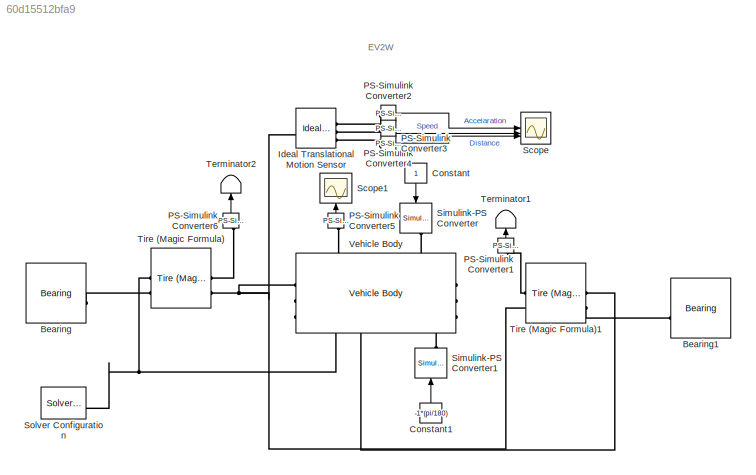
MODEL slx_60d15512bfa9
KIND model
CONFIG AbsTol = auto
CONFIG EnableMultiTasking = off
CONFIG FixedStep = auto
CONFIG MaxStep = auto
CONFIG MinStep = auto
CONFIG RelTol = 1e-3
CONFIG SampleTimeConstraint = Unconstrained
CONFIG SolverName = VariableStepAuto
CONFIG StartTime = 0.0
CONFIG StopTime = 200
BLOCK [Reference] Bearing  REF=sdl_lib/Couplings & Drives/Bearing
  SourceBlock = sdl_lib/Couplings & Drives/Bearing
  SourceType = Bearing
BLOCK [Reference] Bearing1  REF=sdl_lib/Couplings & Drives/Bearing
  SourceBlock = sdl_lib/Couplings & Drives/Bearing
  SourceType = Bearing
BLOCK [Constant] Constant
  NameLocation = left
BLOCK [Constant] Constant1
  NameLocation = right
  Value = -1*(pi/180)
BLOCK [Reference] Ideal Translational Motion Sensor  REF=fl_lib/Mechanical/Mechanical Sensors/Ideal Translational
Motion Sensor
  SourceBlock = fl_lib/Mechanical/Mechanical Sensors/Ideal Translational\nMotion Sensor
  SourceType = Ideal Translational\nMotion Sensor
BLOCK [Reference] PS-Simulink Converter1  REF=nesl_utility/PS-Simulink
Converter
  NameLocation = right
  SourceBlock = nesl_utility/PS-Simulink\nConverter
  SourceType = PS-Simulink\nConverter
BLOCK [Reference] PS-Simulink Converter2  REF=nesl_utility/PS-Simulink
Converter
  SourceBlock = nesl_utility/PS-Simulink\nConverter
  SourceType = PS-Simulink\nConverter
BLOCK [Reference] PS-Simulink Converter3  REF=nesl_utility/PS-Simulink
Converter
  SourceBlock = nesl_utility/PS-Simulink\nConverter
  SourceType = PS-Simulink\nConverter
BLOCK [Reference] PS-Simulink Converter4  REF=nesl_utility/PS-Simulink
Converter
  SourceBlock = nesl_utility/PS-Simulink\nConverter
  SourceType = PS-Simulink\nConverter
BLOCK [Reference] PS-Simulink Converter5  REF=nesl_utility/PS-Simulink
Converter
  NameLocation = right
  SourceBlock = nesl_utility/PS-Simulink\nConverter
  SourceType = PS-Simulink\nConverter
BLOCK [Reference] PS-Simulink Converter6  REF=nesl_utility/PS-Simulink
Converter
  NameLocation = right
  SourceBlock = nesl_utility/PS-Simulink\nConverter
  SourceType = PS-Simulink\nConverter
BLOCK [Scope] Scope
  Floating = off
  NumInputPorts = 3
  ScopeSpecificationString = Simulink.scopes.TimeScopeBlockCfg('CurrentConfiguration', extmgr.ConfigurationSet(extmgr.Configuration('Core','General UI',true),extmgr.Configuration('Core','Source UI',true),extmgr.Configuration('Sources','WiredSimulink',true),extmgr.Configuration('Visuals','Time Domain',true,'SerializedDisplays',{struct('MinYLimReal','-10','MaxYLimReal','10','YLabelReal','','MinYLimMag','0','MaxYLimMag','10','Le...<+1367ch>
BLOCK [Scope] Scope1
  Floating = off
  NameLocation = right
  NumInputPorts = 1
  ScopeSpecificationString = Simulink.scopes.TimeScopeBlockCfg('CurrentConfiguration', extmgr.ConfigurationSet(extmgr.Configuration('Core','General UI',true),extmgr.Configuration('Core','Source UI',true),extmgr.Configuration('Sources','WiredSimulink',true,'DataLoggingVariableName','ScopeData1'),extmgr.Configuration('Visuals','Time Domain',true,'SerializedDisplays',{struct('MinYLimReal','-10','MaxYLimReal','10','YLabelReal',''...<+877ch>
BLOCK [Reference] Simulink-PS Converter  REF=nesl_utility/Simulink-PS
Converter
  NameLocation = left
  SourceBlock = nesl_utility/Simulink-PS\nConverter
  SourceType = Simulink-PS\nConverter
BLOCK [Reference] Simulink-PS Converter1  REF=nesl_utility/Simulink-PS
Converter
  NameLocation = right
  SourceBlock = nesl_utility/Simulink-PS\nConverter
  SourceType = Simulink-PS\nConverter
BLOCK [Reference] Solver Configuration  REF=nesl_utility/Solver
Configuration
  SourceBlock = nesl_utility/Solver\nConfiguration
  SourceType = Solver\nConfiguration
BLOCK [Terminator] Terminator1
  NameLocation = right
BLOCK [Terminator] Terminator2
  NameLocation = right
BLOCK [Reference] Tire (Magic Formula)  REF=sdl_lib/Tires & Vehicles/Tire (Magic Formula)
  SourceBlock = sdl_lib/Tires & Vehicles/Tire (Magic Formula)
  SourceType = Tire (Magic Formula)
BLOCK [Reference] Tire (Magic Formula)1  REF=sdl_lib/Tires & Vehicles/Tire (Magic Formula)
  SourceBlock = sdl_lib/Tires & Vehicles/Tire (Magic Formula)
  SourceType = Tire (Magic Formula)
BLOCK [Reference] Vehicle Body  REF=sdl_lib/Tires & Vehicles/Vehicle Body
  SourceBlock = sdl_lib/Tires & Vehicles/Vehicle Body
  SourceType = Vehicle Body
ANNOTATION (root): EV2W
LINE Constant1:1 -> Simulink-PS Converter1:1
LINE Constant:1 -> Simulink-PS Converter:1
LINE PS-Simulink Converter1:1 -> Terminator1:1
LINE PS-Simulink Converter2:1 -> Scope:1
LINE PS-Simulink Converter3:1 -> Scope:3
LINE PS-Simulink Converter4:1 -> Scope:2
LINE PS-Simulink Converter5:1 -> Scope1:1
LINE PS-Simulink Converter6:1 -> Terminator2:1
PLINE Bearing1:LConn1 -- Tire (Magic Formula)1:LConn2
PLINE Bearing:LConn1 -- Tire (Magic Formula):LConn2
PNET net1: Ideal Translational Motion Sensor:LConn1 -- Tire (Magic Formula)1:RConn2 -- Tire (Magic Formula):RConn2 -- Vehicle Body:LConn1
PLINE Ideal Translational Motion Sensor:RConn1 -- PS-Simulink Converter2:LConn1
PLINE Ideal Translational Motion Sensor:RConn2 -- PS-Simulink Converter4:LConn1
PLINE Ideal Translational Motion Sensor:RConn3 -- PS-Simulink Converter3:LConn1
PLINE PS-Simulink Converter1:LConn1 -- Tire (Magic Formula)1:RConn1
PLINE PS-Simulink Converter5:LConn1 -- Vehicle Body:LConn2
PLINE PS-Simulink Converter6:LConn1 -- Tire (Magic Formula):RConn1
PLINE Simulink-PS Converter1:RConn1 -- Vehicle Body:RConn3
PLINE Simulink-PS Converter:RConn1 -- Vehicle Body:LConn3
PNET net2: Solver Configuration:RConn1 -- Tire (Magic Formula):LConn1 -- Vehicle Body:RConn1
PLINE Tire (Magic Formula)1:LConn1 -- Vehicle Body:RConn2
note: PNET lines group multi-terminal physical nets as a canonical sorted terminal list (undirected conserving connections); 2-terminal nets keep the pairwise PLINE form
